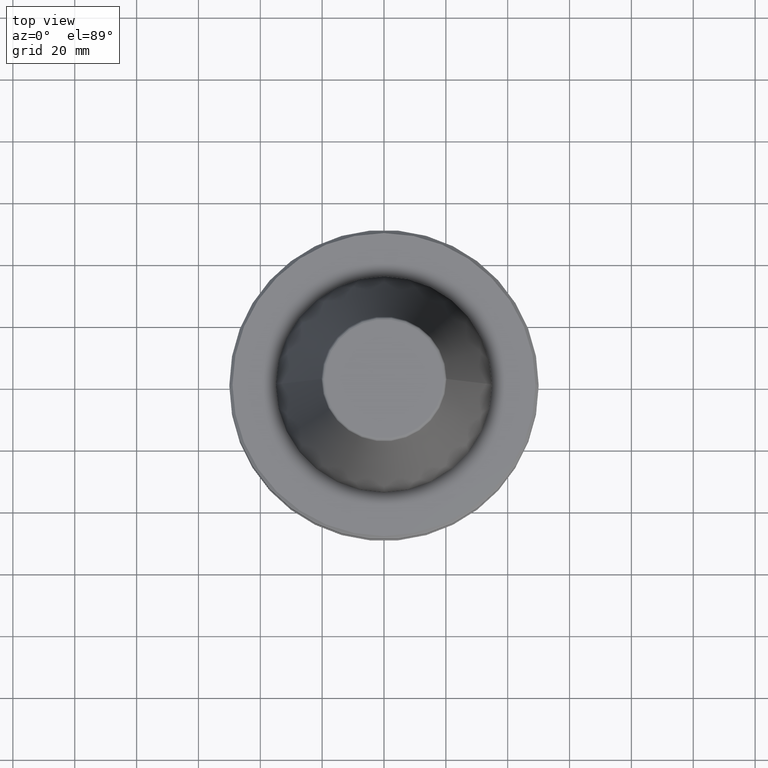
[diagram: clean part render]
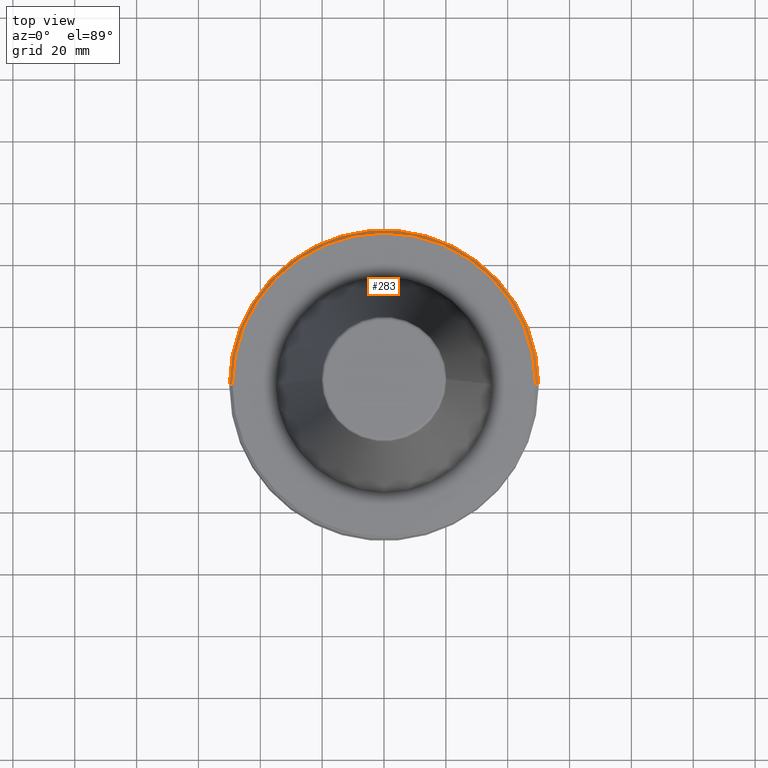
[diagram: same view with one face highlighted and labeled with its STEP entity id]
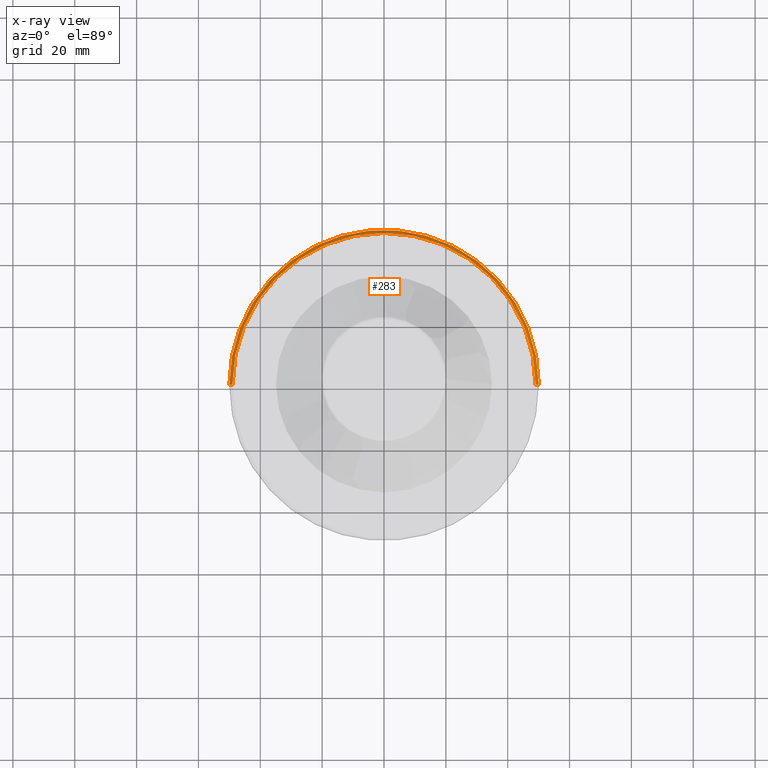
[diagram: x-ray of the same camera — body ghosted, the highlighted face saturated]
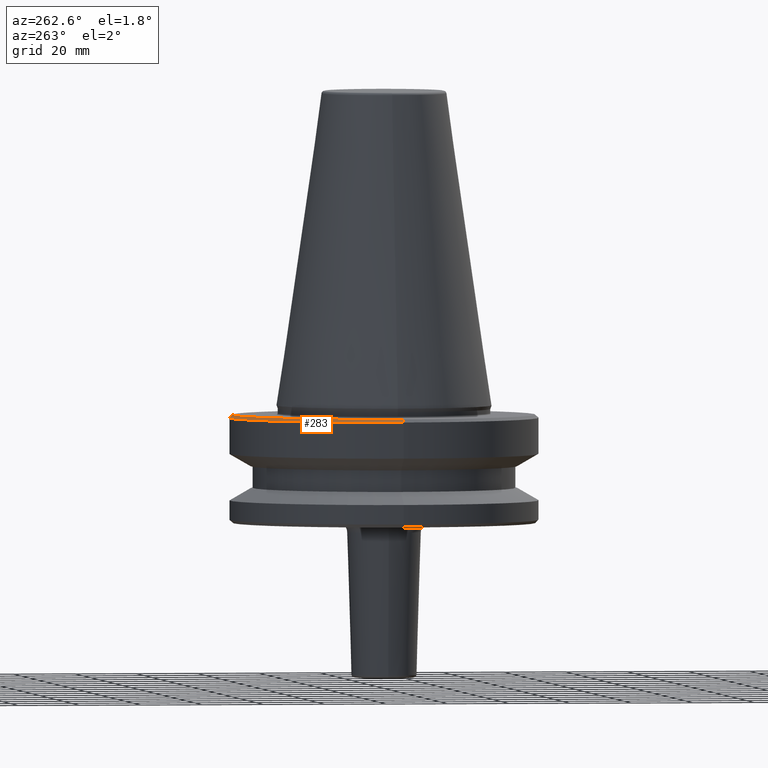
[diagram: same view with one face highlighted and labeled with its STEP entity id]
A machine part, top view. The second image highlights one B-rep face of the part: STEP entity #283.
The next image is the same camera in x-ray: the body ghosted, the highlighted face saturated — about 0% of this face is hidden behind the body in this view.
A second angle (auxiliary view) of the same face is appended — the face is thin or edge-on in the first view.
In plain terms, the highlighted conical surface has half-angle 45 deg.
Its self-contained STEP definition (entity closure, byte-faithful):
#3 = CARTESIAN_POINT ( 'NONE',  ( -50.00000000000000000, 0.0000000000000000000, -3.999999999999989800 ) ) ;
#26 = CARTESIAN_POINT ( 'NONE',  ( -50.00000000000000000, 6.123233995736766100E-015, -3.999999999999989800 ) ) ;
#38 = VERTEX_POINT ( 'NONE', #215 ) ;
#55 = ORIENTED_EDGE ( 'NONE', *, *, #857, .F. ) ;
#69 = ORIENTED_EDGE ( 'NONE', *, *, #169, .T. ) ;
#71 = EDGE_CURVE ( 'NONE', #740, #38, #933, .T. ) ;
#102 = CIRCLE ( 'NONE', #427, 50.00000000000000000 ) ;
#134 = AXIS2_PLACEMENT_3D ( 'NONE', #721, #482, #326 ) ;
#169 = EDGE_CURVE ( 'NONE', #38, #555, #102, .T. ) ;
#177 = EDGE_LOOP ( 'NONE', ( #55, #955, #69, #840 ) ) ;
#205 = FACE_OUTER_BOUND ( 'NONE', #177, .T. ) ;
#215 = CARTESIAN_POINT ( 'NONE',  ( 50.00000000000000000, 0.0000000000000000000, -3.999999999999989800 ) ) ;
#260 = VECTOR ( 'NONE', #401, 1000.000000000000000 ) ;
#280 = EDGE_CURVE ( 'NONE', #991, #555, #706, .T. ) ;
#283 = ADVANCED_FACE ( 'NONE', ( #205 ), #518, .T. ) ;
#326 = DIRECTION ( 'NONE',  ( -1.000000000000000000, 0.0000000000000000000, 0.0000000000000000000 ) ) ;
#336 = CARTESIAN_POINT ( 'NONE',  ( 50.00000000000000000, 6.123233995736766100E-015, -3.999999999999989800 ) ) ;
#401 = DIRECTION ( 'NONE',  ( -0.7071067811865474600, 0.0000000000000000000, -0.7071067811865475700 ) ) ;
#402 = CARTESIAN_POINT ( 'NONE',  ( -49.00000000000000000, 0.0000000000000000000, -2.999999999999988900 ) ) ;
#416 = DIRECTION ( 'NONE',  ( 0.7071067811865474600, 8.659560562354931600E-017, -0.7071067811865475700 ) ) ;
#427 = AXIS2_PLACEMENT_3D ( 'NONE', #579, #830, #899 ) ;
#470 = CARTESIAN_POINT ( 'NONE',  ( 0.0000000000000000000, 0.0000000000000000000, -2.999999999999988900 ) ) ;
#482 = DIRECTION ( 'NONE',  ( 0.0000000000000000000, 0.0000000000000000000, -1.000000000000000000 ) ) ;
#518 = CONICAL_SURFACE ( 'NONE', #134, 50.00000000000000000, 0.7853981633974482800 ) ;
#555 = VERTEX_POINT ( 'NONE', #26 ) ;
#559 = DIRECTION ( 'NONE',  ( 1.000000000000000000, 0.0000000000000000000, 0.0000000000000000000 ) ) ;
#579 = CARTESIAN_POINT ( 'NONE',  ( 0.0000000000000000000, 0.0000000000000000000, -3.999999999999989800 ) ) ;
#621 = CIRCLE ( 'NONE', #715, 49.00000000000000000 ) ;
#706 = LINE ( 'NONE', #3, #260 ) ;
#715 = AXIS2_PLACEMENT_3D ( 'NONE', #470, #997, #559 ) ;
#721 = CARTESIAN_POINT ( 'NONE',  ( 0.0000000000000000000, 0.0000000000000000000, -3.999999999999989800 ) ) ;
#740 = VERTEX_POINT ( 'NONE', #769 ) ;
#769 = CARTESIAN_POINT ( 'NONE',  ( 49.00000000000000000, 6.062001655779398500E-015, -2.999999999999988900 ) ) ;
#790 = VECTOR ( 'NONE', #416, 1000.000000000000000 ) ;
#830 = DIRECTION ( 'NONE',  ( -0.0000000000000000000, -0.0000000000000000000, 1.000000000000000000 ) ) ;
#840 = ORIENTED_EDGE ( 'NONE', *, *, #280, .F. ) ;
#857 = EDGE_CURVE ( 'NONE', #740, #991, #621, .T. ) ;
#899 = DIRECTION ( 'NONE',  ( 1.000000000000000000, 0.0000000000000000000, 0.0000000000000000000 ) ) ;
#933 = LINE ( 'NONE', #336, #790 ) ;
#955 = ORIENTED_EDGE ( 'NONE', *, *, #71, .T. ) ;
#991 = VERTEX_POINT ( 'NONE', #402 ) ;
#997 = DIRECTION ( 'NONE',  ( -0.0000000000000000000, -0.0000000000000000000, 1.000000000000000000 ) ) ;